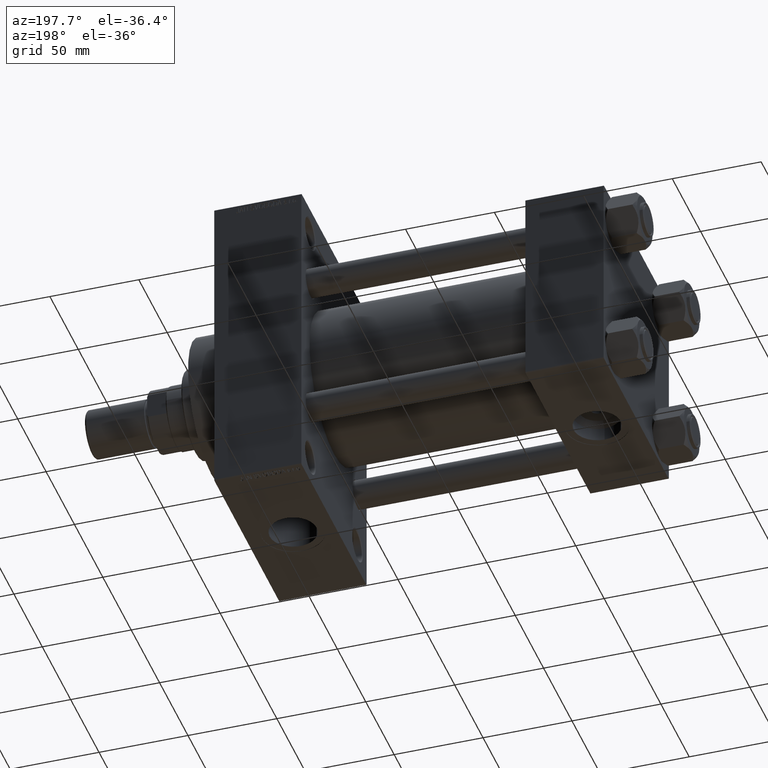
[diagram: clean part render]
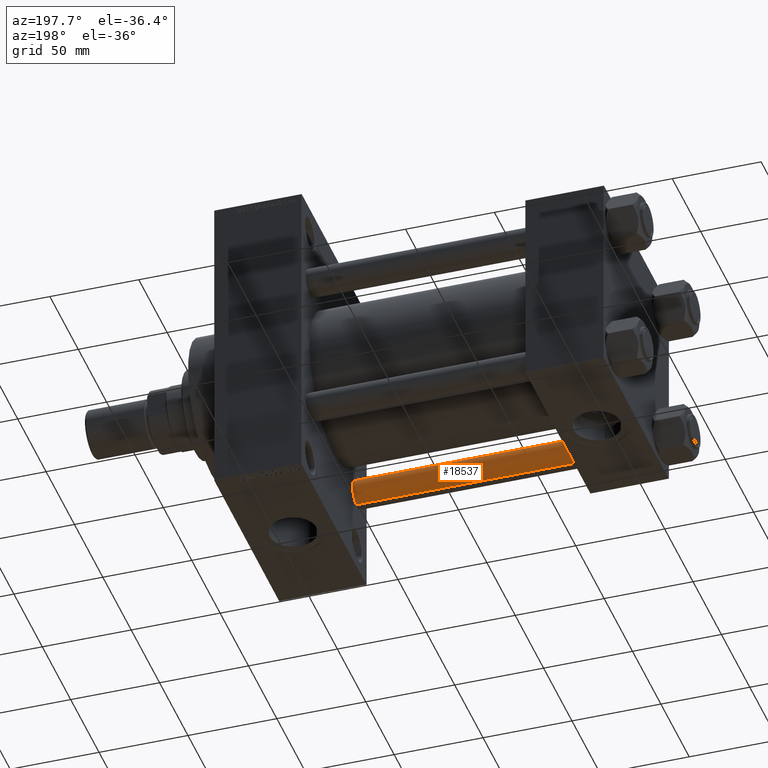
[diagram: same view with one face highlighted and labeled with its STEP entity id]
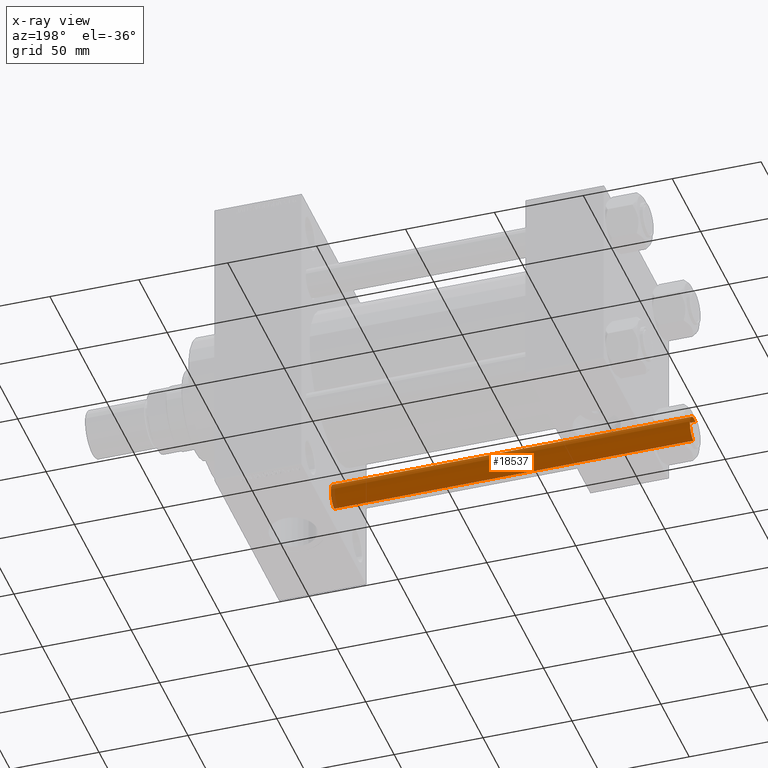
[diagram: x-ray of the same camera — body ghosted, the highlighted face saturated]
A machine part, auxiliary view. The second image highlights one B-rep face of the part: STEP entity #18537.
The next image is the same camera in x-ray: the body ghosted, the highlighted face saturated — about 1% of this face is hidden behind the body in this view.
In plain terms, the highlighted cylindrical surface (edge-blend (fillet) strip) has radius 8 mm, axis along (-1, 0, 0).
Its self-contained STEP definition (entity closure, byte-faithful):
#1269 = CIRCLE ( 'NONE', #29453, 8.000000000000000000 ) ;
#2672 = DIRECTION ( 'NONE',  ( -0.000000000000000000, -0.000000000000000000, 1.000000000000000000 ) ) ;
#4163 = DIRECTION ( 'NONE',  ( -0.000000000000000000, -0.000000000000000000, -1.000000000000000000 ) ) ;
#4164 = DIRECTION ( 'NONE',  ( -0.000000000000000000, -0.000000000000000000, -1.000000000000000000 ) ) ;
#5537 = DIRECTION ( 'NONE',  ( 1.000000000000000000, 0.000000000000000000, 0.000000000000000000 ) ) ;
#9470 = ORIENTED_EDGE ( 'NONE', *, *, #38310, .T. ) ;
#9896 = DIRECTION ( 'NONE',  ( 1.000000000000000000, 0.000000000000000000, 0.000000000000000000 ) ) ;
#11202 = ORIENTED_EDGE ( 'NONE', *, *, #37146, .F. ) ;
#12739 = LINE ( 'NONE', #19826, #47776 ) ;
#13291 = EDGE_CURVE ( 'NONE', #46191, #20181, #12739, .T. ) ;
#15448 = LINE ( 'NONE', #23033, #40818 ) ;
#16601 = CARTESIAN_POINT ( 'NONE',  ( 8.000000000000000000, 9.797174393178823685E-16, 202.5000000000000853 ) ) ;
#16862 = ORIENTED_EDGE ( 'NONE', *, *, #13291, .T. ) ;
#18537 = ADVANCED_FACE ( 'NONE', ( #30157 ), #23350, .T. ) ;
#19322 = CARTESIAN_POINT ( 'NONE',  ( 0.000000000000000000, 0.000000000000000000, 203.0000000000000000 ) ) ;
#19826 = CARTESIAN_POINT ( 'NONE',  ( -8.000000000000000000, 0.000000000000000000, 203.0000000000000000 ) ) ;
#20181 = VERTEX_POINT ( 'NONE', #25700 ) ;
#20340 = VERTEX_POINT ( 'NONE', #16601 ) ;
#21540 = ORIENTED_EDGE ( 'NONE', *, *, #32112, .T. ) ;
#21987 = DIRECTION ( 'NONE',  ( 0.000000000000000000, 0.000000000000000000, -1.000000000000000000 ) ) ;
#22351 = EDGE_LOOP ( 'NONE', ( #11202, #9470, #16862, #21540 ) ) ;
#23033 = CARTESIAN_POINT ( 'NONE',  ( 8.000000000000000000, 9.797174393178823685E-16, 203.0000000000000000 ) ) ;
#23350 = CYLINDRICAL_SURFACE ( 'NONE', #26996, 8.000000000000000000 ) ;
#25700 = CARTESIAN_POINT ( 'NONE',  ( -8.000000000000000000, 0.000000000000000000, 0.5000000000001947331 ) ) ;
#26996 = AXIS2_PLACEMENT_3D ( 'NONE', #19322, #4164, #30901 ) ;
#29453 = AXIS2_PLACEMENT_3D ( 'NONE', #39617, #2672, #5537 ) ;
#30157 = FACE_OUTER_BOUND ( 'NONE', #22351, .T. ) ;
#30901 = DIRECTION ( 'NONE',  ( -1.000000000000000000, 0.000000000000000000, 0.000000000000000000 ) ) ;
#32112 = EDGE_CURVE ( 'NONE', #20181, #32210, #1269, .T. ) ;
#32210 = VERTEX_POINT ( 'NONE', #38242 ) ;
#33129 = CARTESIAN_POINT ( 'NONE',  ( -8.000000000000000000, 0.000000000000000000, 202.5000000000000853 ) ) ;
#35215 = AXIS2_PLACEMENT_3D ( 'NONE', #44457, #21987, #9896 ) ;
#37146 = EDGE_CURVE ( 'NONE', #20340, #32210, #15448, .T. ) ;
#38242 = CARTESIAN_POINT ( 'NONE',  ( 8.000000000000000000, 9.797174393178823685E-16, 0.5000000000001947331 ) ) ;
#38310 = EDGE_CURVE ( 'NONE', #20340, #46191, #47307, .T. ) ;
#39617 = CARTESIAN_POINT ( 'NONE',  ( 0.000000000000000000, 0.000000000000000000, 0.5000000000001947331 ) ) ;
#40818 = VECTOR ( 'NONE', #42213, 1000.000000000000000 ) ;
#42213 = DIRECTION ( 'NONE',  ( -0.000000000000000000, -0.000000000000000000, -1.000000000000000000 ) ) ;
#44457 = CARTESIAN_POINT ( 'NONE',  ( 0.000000000000000000, 0.000000000000000000, 202.5000000000000853 ) ) ;
#46191 = VERTEX_POINT ( 'NONE', #33129 ) ;
#47307 = CIRCLE ( 'NONE', #35215, 8.000000000000000000 ) ;
#47776 = VECTOR ( 'NONE', #4163, 1000.000000000000000 ) ;